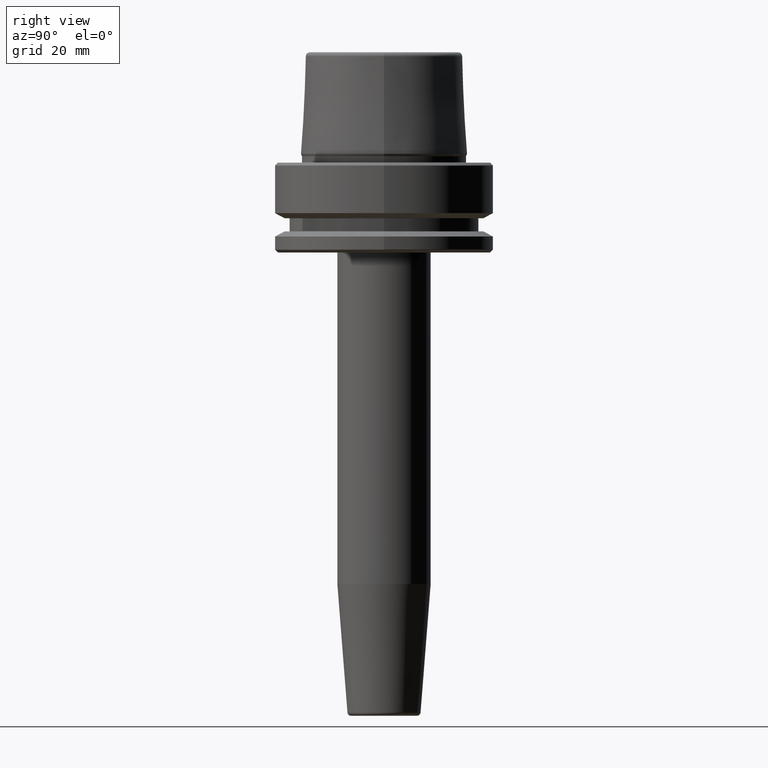
[diagram: clean part render]
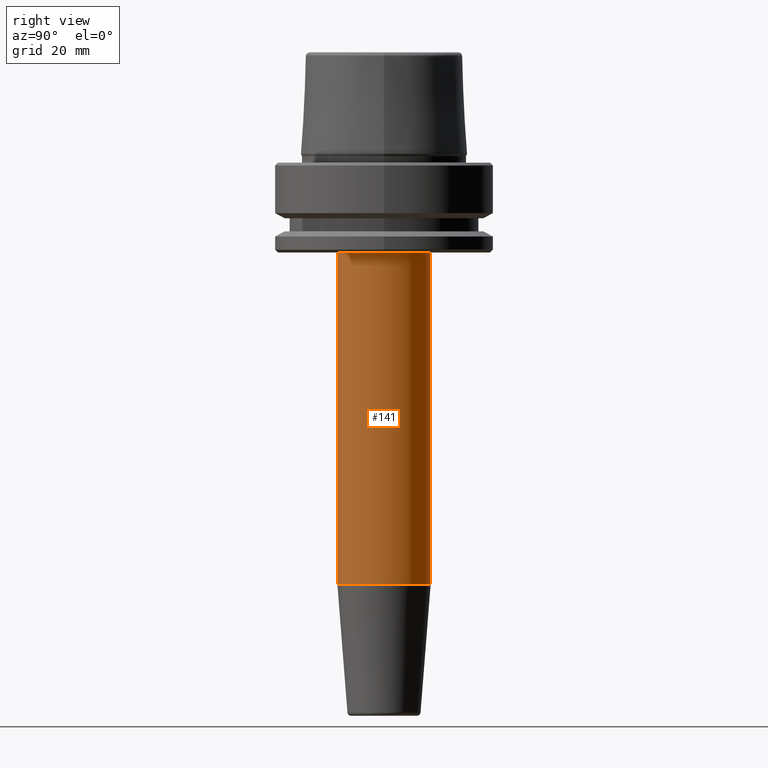
[diagram: same view with one face highlighted and labeled with its STEP entity id]
A machine part, right view. The second image highlights one B-rep face of the part: STEP entity #141.
In plain terms, the highlighted cylindrical surface (partial cylindrical patch) has radius 13.5 mm, axis along (-0, 0, -1).
Its self-contained STEP definition (entity closure, byte-faithful):
#7 = DIRECTION ( 'NONE',  ( -0.0000000000000000000, 3.655662087007025400E-017, -1.000000000000000000 ) ) ;
#8 = AXIS2_PLACEMENT_3D ( 'NONE', #599, #7, #705 ) ;
#36 = CARTESIAN_POINT ( 'NONE',  ( 1.653273178848925700E-015, -13.49999999999998600, -160.0000000000000000 ) ) ;
#42 = FACE_OUTER_BOUND ( 'NONE', #398, .T. ) ;
#59 = EDGE_CURVE ( 'NONE', #590, #558, #605, .T. ) ;
#98 = CARTESIAN_POINT ( 'NONE',  ( 1.653273178848925500E-015, 13.49999999999999300, -121.8813857914724800 ) ) ;
#141 = ADVANCED_FACE ( 'NONE', ( #42 ), #320, .T. ) ;
#232 = DIRECTION ( 'NONE',  ( -0.0000000000000000000, 3.655662087007025400E-017, -1.000000000000000000 ) ) ;
#320 = CYLINDRICAL_SURFACE ( 'NONE', #610, 13.49999999999999100 ) ;
#325 = EDGE_CURVE ( 'NONE', #590, #1178, #433, .T. ) ;
#369 = DIRECTION ( 'NONE',  ( -0.0000000000000000000, 3.655662087007025400E-017, -1.000000000000000000 ) ) ;
#377 = DIRECTION ( 'NONE',  ( 0.0000000000000000000, 0.0000000000000000000, -1.000000000000000000 ) ) ;
#398 = EDGE_LOOP ( 'NONE', ( #1014, #706, #445, #656 ) ) ;
#432 = AXIS2_PLACEMENT_3D ( 'NONE', #958, #377, #1049 ) ;
#433 = CIRCLE ( 'NONE', #432, 13.49999999999999100 ) ;
#445 = ORIENTED_EDGE ( 'NONE', *, *, #509, .F. ) ;
#509 = EDGE_CURVE ( 'NONE', #558, #744, #1024, .T. ) ;
#539 = CARTESIAN_POINT ( 'NONE',  ( 0.0000000000000000000, -13.49999999999998600, -121.8813857914724800 ) ) ;
#558 = VERTEX_POINT ( 'NONE', #98 ) ;
#590 = VERTEX_POINT ( 'NONE', #611 ) ;
#599 = CARTESIAN_POINT ( 'NONE',  ( 0.0000000000000000000, 3.505099468875800400E-015, -121.8813857914724800 ) ) ;
#605 = LINE ( 'NONE', #1003, #824 ) ;
#610 = AXIS2_PLACEMENT_3D ( 'NONE', #988, #369, #954 ) ;
#611 = CARTESIAN_POINT ( 'NONE',  ( 0.0000000000000000000, 13.49999999999999100, -25.99999999999999600 ) ) ;
#649 = VECTOR ( 'NONE', #232, 1000.000000000000000 ) ;
#656 = ORIENTED_EDGE ( 'NONE', *, *, #59, .F. ) ;
#705 = DIRECTION ( 'NONE',  ( 0.0000000000000000000, 1.000000000000000000, 0.0000000000000000000 ) ) ;
#706 = ORIENTED_EDGE ( 'NONE', *, *, #922, .T. ) ;
#744 = VERTEX_POINT ( 'NONE', #539 ) ;
#824 = VECTOR ( 'NONE', #903, 1000.000000000000000 ) ;
#903 = DIRECTION ( 'NONE',  ( -0.0000000000000000000, 3.655662087007025400E-017, -1.000000000000000000 ) ) ;
#922 = EDGE_CURVE ( 'NONE', #1178, #744, #1154, .T. ) ;
#954 = DIRECTION ( 'NONE',  ( 0.0000000000000000000, 1.000000000000000000, 0.0000000000000000000 ) ) ;
#958 = CARTESIAN_POINT ( 'NONE',  ( 0.0000000000000000000, 0.0000000000000000000, -25.99999999999999600 ) ) ;
#972 = CARTESIAN_POINT ( 'NONE',  ( 1.653273178848926100E-015, -13.49999999999999300, -25.99999999999999600 ) ) ;
#988 = CARTESIAN_POINT ( 'NONE',  ( 0.0000000000000000000, 4.898587196589414600E-015, -160.0000000000000000 ) ) ;
#1003 = CARTESIAN_POINT ( 'NONE',  ( 0.0000000000000000000, 13.49999999999999600, -160.0000000000000000 ) ) ;
#1014 = ORIENTED_EDGE ( 'NONE', *, *, #325, .T. ) ;
#1024 = CIRCLE ( 'NONE', #8, 13.49999999999998900 ) ;
#1049 = DIRECTION ( 'NONE',  ( 1.000000000000000000, 0.0000000000000000000, 0.0000000000000000000 ) ) ;
#1154 = LINE ( 'NONE', #36, #649 ) ;
#1178 = VERTEX_POINT ( 'NONE', #972 ) ;